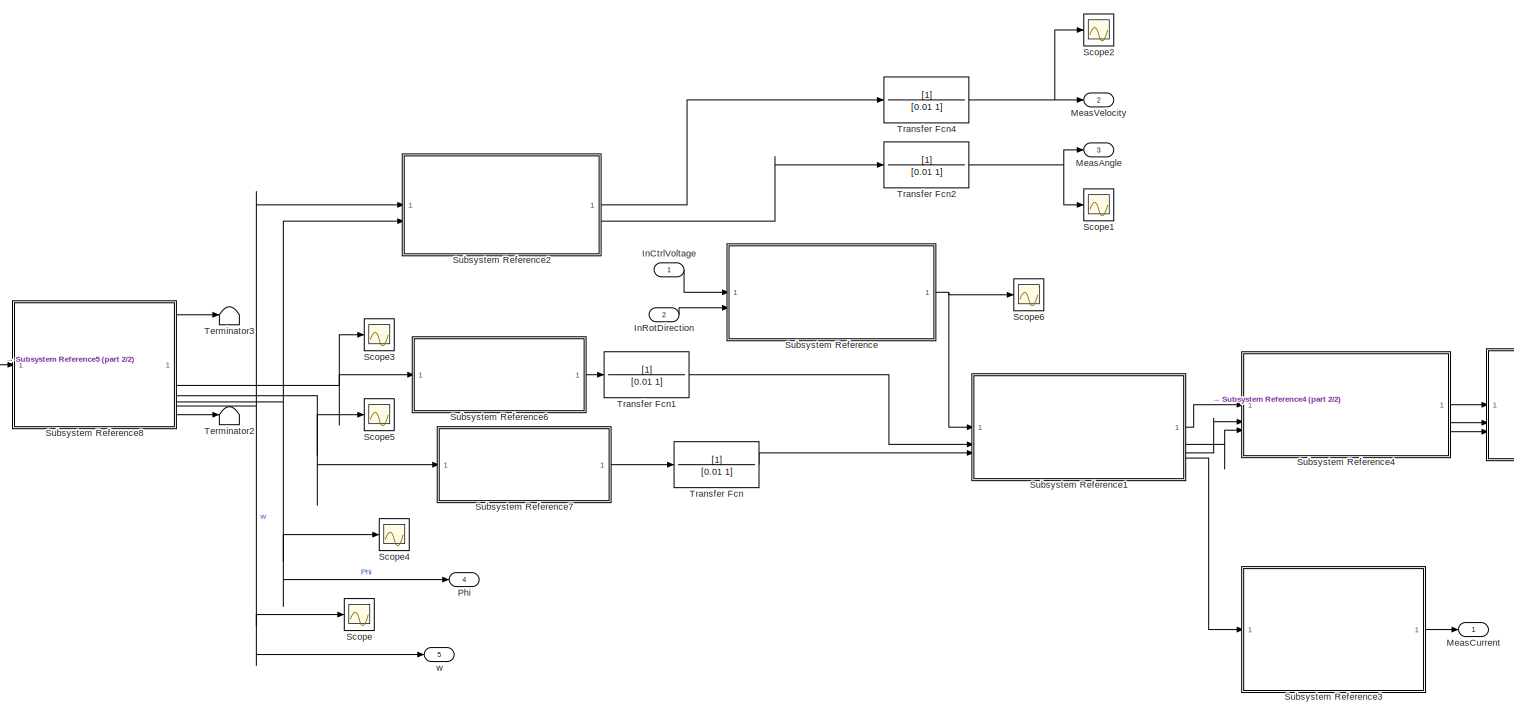
[diagram: root canvas - part 1/2, most of the canvas]
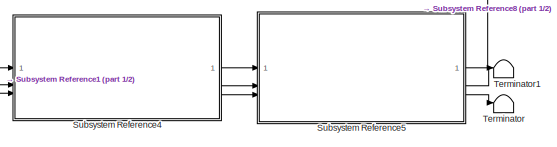
[diagram: root canvas - part 2/2, middle right region]
MODEL slx_9c226abeac09
KIND model
CONFIG AbsTol = auto
CONFIG EnableMultiTasking = off
CONFIG FixedStep = 0.001
CONFIG MaxStep = auto
CONFIG MinStep = auto
CONFIG RelTol = 1e-3
CONFIG SampleTimeConstraint = Unconstrained
CONFIG SolverName = ode1be
CONFIG StartTime = 0.0
CONFIG StopTime = 10.0
BLOCK [Outport]  Phi
  OutDataTypeStr = double
  Port = 4
  PortDimensions = 1
  SampleTime = 0
  SamplingMode = Sample based
  SignalType = real
BLOCK [Inport] InCtrlVoltage
  OutDataTypeStr = double
  PortDimensions = 1
  SampleTime = 0
  SamplingMode = Sample based
  SignalType = real
BLOCK [Inport] InRotDirection
  OutDataTypeStr = double
  Port = 2
  PortDimensions = 1
  SampleTime = 0
  SamplingMode = Sample based
  SignalType = real
BLOCK [Outport] MeasAngle
  OutDataTypeStr = double
  Port = 3
  PortDimensions = 1
  SampleTime = 0
  SamplingMode = Sample based
  SignalType = real
BLOCK [Outport] MeasCurrent
  OutDataTypeStr = double
  PortDimensions = 1
  SampleTime = 0
  SamplingMode = Sample based
  SignalType = real
BLOCK [Outport] MeasVelocity
  OutDataTypeStr = double
  Port = 2
  PortDimensions = 1
  SampleTime = 0
  SamplingMode = Sample based
  SignalType = real
BLOCK [Scope] Scope
  Floating = off
  NumInputPorts = 1
  ScopeSpecificationString = Simulink.scopes.TimeScopeBlockCfg('CurrentConfiguration', extmgr.ConfigurationSet(extmgr.Configuration('Core','General UI',true),extmgr.Configuration('Core','Source UI',true),extmgr.Configuration('Sources','WiredSimulink',true),extmgr.Configuration('Visuals','Time Domain',true,'SerializedDisplays',{struct('MinYLimReal','-0.41672','MaxYLimReal','0.41472','YLabelReal','','MinYLimMag','0.00000','MaxY...<+1321ch>
BLOCK [Scope] Scope1
  Floating = off
  NumInputPorts = 1
  ScopeSpecificationString = Simulink.scopes.TimeScopeBlockCfg('CurrentConfiguration', extmgr.ConfigurationSet(extmgr.Configuration('Core','General UI',true),extmgr.Configuration('Core','Source UI',true),extmgr.Configuration('Sources','WiredSimulink',true,'DataLoggingVariableName','ScopeData1'),extmgr.Configuration('Visuals','Time Domain',true,'SerializedDisplays',{struct('MinYLimReal','-0.39152','MaxYLimReal','0.0435','YLabe...<+1379ch>
BLOCK [Scope] Scope2
  Floating = off
  NumInputPorts = 1
  ScopeSpecificationString = Simulink.scopes.TimeScopeBlockCfg('CurrentConfiguration', extmgr.ConfigurationSet(extmgr.Configuration('Core','General UI',true),extmgr.Configuration('Core','Source UI',true),extmgr.Configuration('Sources','WiredSimulink',true,'DataLoggingVariableName','ScopeData2'),extmgr.Configuration('Visuals','Time Domain',true,'SerializedDisplays',{struct('MinYLimReal','-0.08334','MaxYLimReal','0.08294','YLab...<+1381ch>
BLOCK [Scope] Scope3
  Floating = off
  NumInputPorts = 1
  ScopeSpecificationString = Simulink.scopes.TimeScopeBlockCfg('CurrentConfiguration', extmgr.ConfigurationSet(extmgr.Configuration('Core','General UI',true),extmgr.Configuration('Core','Source UI',true),extmgr.Configuration('Sources','WiredSimulink',true,'DataLoggingVariableName','ScopeData3'),extmgr.Configuration('Visuals','Time Domain',true,'SerializedDisplays',{struct('MinYLimReal','-0.000000018','MaxYLimReal','0.00000002...<+1414ch>
BLOCK [Scope] Scope4
  Floating = off
  NumInputPorts = 1
  ScopeSpecificationString = Simulink.scopes.TimeScopeBlockCfg('CurrentConfiguration', extmgr.ConfigurationSet(extmgr.Configuration('Core','General UI',true),extmgr.Configuration('Core','Source UI',true),extmgr.Configuration('Sources','WiredSimulink',true,'DataLoggingVariableName','ScopeData4'),extmgr.Configuration('Visuals','Time Domain',true,'SerializedDisplays',{struct('MinYLimReal','-0.19576','MaxYLimReal','0.02175','YLab...<+1395ch>
BLOCK [Scope] Scope5
  Floating = off
  NumInputPorts = 1
  ScopeSpecificationString = Simulink.scopes.TimeScopeBlockCfg('CurrentConfiguration', extmgr.ConfigurationSet(extmgr.Configuration('Core','General UI',true),extmgr.Configuration('Core','Source UI',true),extmgr.Configuration('Sources','WiredSimulink',true,'DataLoggingVariableName','ScopeData5'),extmgr.Configuration('Visuals','Time Domain',true,'SerializedDisplays',{struct('MinYLimReal','-0.07357','MaxYLimReal','0.32492','YLab...<+1415ch>
BLOCK [Scope] Scope6
  Floating = off
  NumInputPorts = 1
  ScopeSpecificationString = Simulink.scopes.TimeScopeBlockCfg('CurrentConfiguration', extmgr.ConfigurationSet(extmgr.Configuration('Core','General UI',true),extmgr.Configuration('Core','Source UI',true),extmgr.Configuration('Sources','WiredSimulink',true,'DataLoggingVariableName','ScopeData6'),extmgr.Configuration('Visuals','Time Domain',true,'SerializedDisplays',{struct('MinYLimReal','-4.52398','MaxYLimReal','6.48728','YLab...<+1378ch>
BLOCK [SubSystem] Subsystem Reference
  Kpa = 7.3
  ReferencedSubsystem = Power_Gain
BLOCK [SubSystem] Subsystem Reference1
  J_motor = 5e-07
  L = 0.00035
  R = 10
  ReferencedSubsystem = Motor
  km = 16e-3
  kw = 62.8
  motor_nominal_voltage = 24
  vis_friction_coef_motor = 0.1
BLOCK [SubSystem] Subsystem Reference2
  ReferencedSubsystem = HallSensor
BLOCK [SubSystem] Subsystem Reference3
  ReferencedSubsystem = CurrentSensor
BLOCK [SubSystem] Subsystem Reference4
  J_gear = 2.4e-6
  ReferencedSubsystem = Reductor
  i_gear = 100
  vis_friction_coef_gear = 0.15
BLOCK [SubSystem] Subsystem Reference5
  J_pinion = 1e-6
  ReferencedSubsystem = RackAndPinion
  i_rp = 20000
  vis_friction_coef_rp = 0.002
BLOCK [SubSystem] Subsystem Reference6
  ReferencedSubsystem = BackwardAccConverter
BLOCK [SubSystem] Subsystem Reference7
  ReferencedSubsystem = BackwardAccConverter
BLOCK [SubSystem] Subsystem Reference8
  ReferencedSubsystem = InversePendulum
BLOCK [Terminator] Terminator
BLOCK [Terminator] Terminator1
BLOCK [Terminator] Terminator2
BLOCK [Terminator] Terminator3
BLOCK [TransferFcn] Transfer Fcn
  Denominator = [0.01 1]
BLOCK [TransferFcn] Transfer Fcn1
  Denominator = [0.01 1]
BLOCK [TransferFcn] Transfer Fcn2
  Denominator = [0.01 1]
BLOCK [TransferFcn] Transfer Fcn4
  Denominator = [0.01 1]
BLOCK [Outport] w
  OutDataTypeStr = double
  Port = 5
  PortDimensions = 1
  SampleTime = 0
  SamplingMode = Sample based
  SignalType = real
LINE InCtrlVoltage:1 -> Subsystem Reference:1
LINE InRotDirection:1 -> Subsystem Reference:2
LINE Subsystem Reference1:1 -> Subsystem Reference4:1
LINE Subsystem Reference1:2 -> Subsystem Reference4:3
LINE Subsystem Reference1:3 -> Subsystem Reference4:2
LINE Subsystem Reference1:4 -> Subsystem Reference3:1
LINE Subsystem Reference2:1 -> Transfer Fcn4:1
LINE Subsystem Reference2:2 -> Transfer Fcn2:1
LINE Subsystem Reference3:1 -> MeasCurrent:1
LINE Subsystem Reference4:1 -> Subsystem Reference5:1
LINE Subsystem Reference4:2 -> Subsystem Reference5:2
LINE Subsystem Reference4:3 -> Subsystem Reference5:3
LINE Subsystem Reference5:1 -> Subsystem Reference8:1
LINE Subsystem Reference5:2 -> Terminator1:1
LINE Subsystem Reference5:3 -> Terminator:1
LINE Subsystem Reference6:1 -> Transfer Fcn1:1
LINE Subsystem Reference7:1 -> Transfer Fcn:1
LINE Subsystem Reference8:1 -> Terminator3:1
NET Subsystem Reference8:2 -> Scope3:1, Subsystem Reference6:1
NET Subsystem Reference8:3 -> Scope5:1, Subsystem Reference7:1
NET Subsystem Reference8:4 ->  Phi:1, Scope4:1, Subsystem Reference2:2
NET Subsystem Reference8:5 -> Scope:1, Subsystem Reference2:1, w:1
LINE Subsystem Reference8:6 -> Terminator2:1
NET Subsystem Reference:1 -> Scope6:1, Subsystem Reference1:1
LINE Transfer Fcn1:1 -> Subsystem Reference1:2
NET Transfer Fcn2:1 -> MeasAngle:1, Scope1:1
NET Transfer Fcn4:1 -> MeasVelocity:1, Scope2:1
LINE Transfer Fcn:1 -> Subsystem Reference1:3
note: NET lines group one-source signal fan-out (src -> all destinations, sorted); 1:1 wires keep LINE
